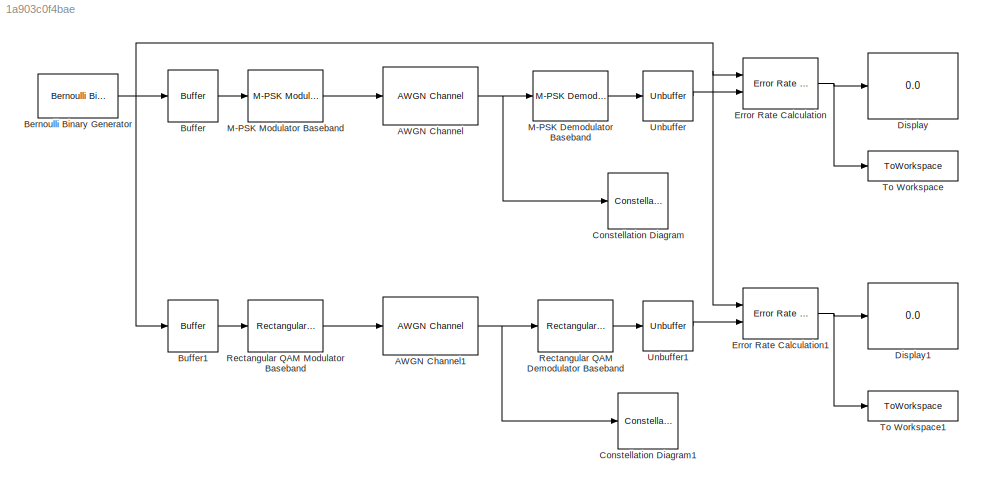
MODEL slx_1a903c0f4bae
KIND model
CONFIG AbsTol = auto
CONFIG EnableMultiTasking = off
CONFIG FixedStep = auto
CONFIG MaxStep = auto
CONFIG MinStep = auto
CONFIG RelTol = 1e-3
CONFIG SampleTimeConstraint = Unconstrained
CONFIG SolverName = VariableStepAuto
CONFIG StartTime = 0.0
CONFIG StopTime = 10
BLOCK [Reference] AWGN Channel  REF=commchan3/AWGN
Channel
  Ports = [1, 1]
  SourceBlock = commchan3/AWGN\nChannel
  SourceProductBaseCode = CM
  SourceType = AWGN Channel
  UserDataPersistent = on
BLOCK [Reference] AWGN Channel1  REF=commchan3/AWGN
Channel
  Ports = [1, 1]
  SourceBlock = commchan3/AWGN\nChannel
  SourceProductBaseCode = CM
  SourceType = AWGN Channel
  UserDataPersistent = on
BLOCK [Reference] Bernoulli Binary Generator  REF=commrandsrc3/Bernoulli Binary
Generator
  Ports = [0, 1]
  SourceBlock = commrandsrc3/Bernoulli Binary\nGenerator
  SourceProductBaseCode = CM
  SourceType = Bernoulli Binary Generator
BLOCK [Buffer] Buffer
  N = k
  OutputFrames = off
BLOCK [Buffer] Buffer1
  N = k
  OutputFrames = off
BLOCK [ConstellationDiagram] Constellation Diagram
  GraphicalSettings = {"Style":{"BackgroundColor":[0.15686274509803921,0.15686274509803921,0.15686274509803921],"AxesColor":[0,0,0],"LabelsColor":[0.68627450980392157,0.68627450980392157,0.68627450980392157],"LineStyle":["NONE"],"LineColor":[1,0,0],"LineWidth":1,"Marker":["none"],"IsRefLine":true,"FontSize":"small"},"ReferenceConstellation":{"AverageReferencePower":1,"RefConstellationValue":"[0.7071+0.7071i  -0.7071+0....<+103ch>
  Ports = [1]
  ReferenceConstellation = QPSK
  ScopeFrameLocation = window
  ShowReferenceConstellation = off
  SymbolsToDisplay = 1000
  SymbolsToDisplaySource = Property
  Visible = on
  WasSavedAsWebScope = on
  WindowPosition = [659.000000,-33.000000,600.000000,536.000000,]
  XLimits = [-1.67,1.67]
  YLimits = [-1.38,1.38]
BLOCK [ConstellationDiagram] Constellation Diagram1
  GraphicalSettings = {"Style":{"BackgroundColor":[0.15686274509803921,0.15686274509803921,0.15686274509803921],"AxesColor":[0,0,0],"LabelsColor":[0.68627450980392157,0.68627450980392157,0.68627450980392157],"LineStyle":["NONE"],"LineColor":[1,0,0],"LineWidth":1,"Marker":["none"],"IsRefLine":true,"FontSize":"small"},"ReferenceConstellation":{"AverageReferencePower":1,"RefConstellationValue":"[0.7071+0.7071i  -0.7071+0....<+103ch>
  Ports = [1]
  ReferenceConstellation = QPSK
  ScopeFrameLocation = window
  ShowReferenceConstellation = off
  SymbolsToDisplay = 1000
  SymbolsToDisplaySource = Property
  Visible = on
  WasSavedAsWebScope = on
  WindowPosition = [295.000000,29.000000,600.000000,600.000000,]
  XLimits = [-1.46,1.46]
  YLimits = [-1.38,1.38]
BLOCK [Display] Display
  Decimation = 1
  Ports = [1]
BLOCK [Display] Display1
  Decimation = 1
  Ports = [1]
BLOCK [Reference] Error Rate Calculation  REF=commsink2/Error Rate
Calculation
  Ports = [2, 1]
  SourceBlock = commsink2/Error Rate\nCalculation
  SourceProductBaseCode = CM
  SourceType = Error Rate Calculation
BLOCK [Reference] Error Rate Calculation1  REF=commsink2/Error Rate
Calculation
  Ports = [2, 1]
  SourceBlock = commsink2/Error Rate\nCalculation
  SourceProductBaseCode = CM
  SourceType = Error Rate Calculation
BLOCK [Reference] M-PSK Demodulator Baseband  REF=commdigbbndpm3/M-PSK
Demodulator
Baseband
  Ports = [1, 1]
  SourceBlock = commdigbbndpm3/M-PSK\nDemodulator\nBaseband
  SourceProductBaseCode = CM
  SourceType = M-PSK Demodulator Baseband
BLOCK [Reference] M-PSK Modulator Baseband  REF=commdigbbndpm3/M-PSK
Modulator
Baseband
  Ports = [1, 1]
  SourceBlock = commdigbbndpm3/M-PSK\nModulator\nBaseband
  SourceProductBaseCode = CM
  SourceType = M-PSK Modulator Baseband
BLOCK [Reference] Rectangular QAM Demodulator Baseband  REF=commdigbbndam3/Rectangular QAM
Demodulator
Baseband
  Ports = [1, 1]
  SourceBlock = commdigbbndam3/Rectangular QAM\nDemodulator\nBaseband
  SourceProductBaseCode = CM
  SourceType = Rectangular QAM Demodulator Baseband
BLOCK [Reference] Rectangular QAM Modulator Baseband  REF=commdigbbndam3/Rectangular QAM
Modulator
Baseband
  Ports = [1, 1]
  SourceBlock = commdigbbndam3/Rectangular QAM\nModulator\nBaseband
  SourceProductBaseCode = CM
  SourceType = Rectangular QAM Modulator Baseband
BLOCK [ToWorkspace] To Workspace
  FixptAsFi = on
  MaxDataPoints = 1
  Ports = [1]
  SampleTime = -1
  VariableName = ber_psk
BLOCK [ToWorkspace] To Workspace1
  FixptAsFi = on
  MaxDataPoints = 1
  Ports = [1]
  SampleTime = -1
  VariableName = ber_qam
BLOCK [Unbuffer] Unbuffer
  Ports = [1, 1]
BLOCK [Unbuffer] Unbuffer1
  Ports = [1, 1]
NET AWGN Channel1:1 -> Constellation Diagram1:1, Rectangular QAM Demodulator Baseband:1
NET AWGN Channel:1 -> Constellation Diagram:1, M-PSK Demodulator Baseband:1
NET Bernoulli Binary Generator:1 -> Buffer1:1, Buffer:1, Error Rate Calculation1:1, Error Rate Calculation:1
LINE Buffer1:1 -> Rectangular QAM Modulator Baseband:1
LINE Buffer:1 -> M-PSK Modulator Baseband:1
NET Error Rate Calculation1:1 -> Display1:1, To Workspace1:1
NET Error Rate Calculation:1 -> Display:1, To Workspace:1
LINE M-PSK Demodulator Baseband:1 -> Unbuffer:1
LINE M-PSK Modulator Baseband:1 -> AWGN Channel:1
LINE Rectangular QAM Demodulator Baseband:1 -> Unbuffer1:1
LINE Rectangular QAM Modulator Baseband:1 -> AWGN Channel1:1
LINE Unbuffer1:1 -> Error Rate Calculation1:2
LINE Unbuffer:1 -> Error Rate Calculation:2
note: NET lines group one-source signal fan-out (src -> all destinations, sorted); 1:1 wires keep LINE
